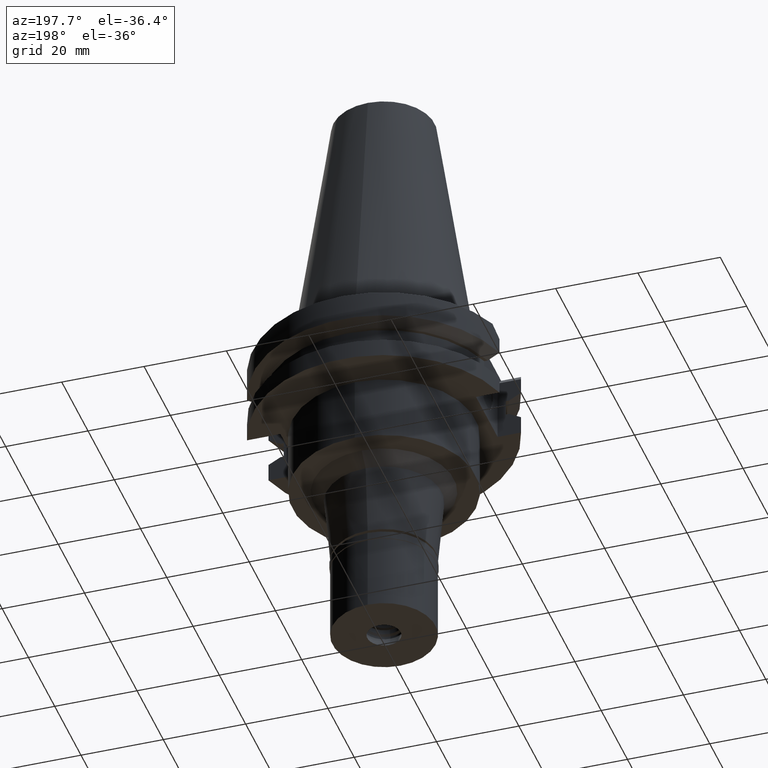
[diagram: clean part render]
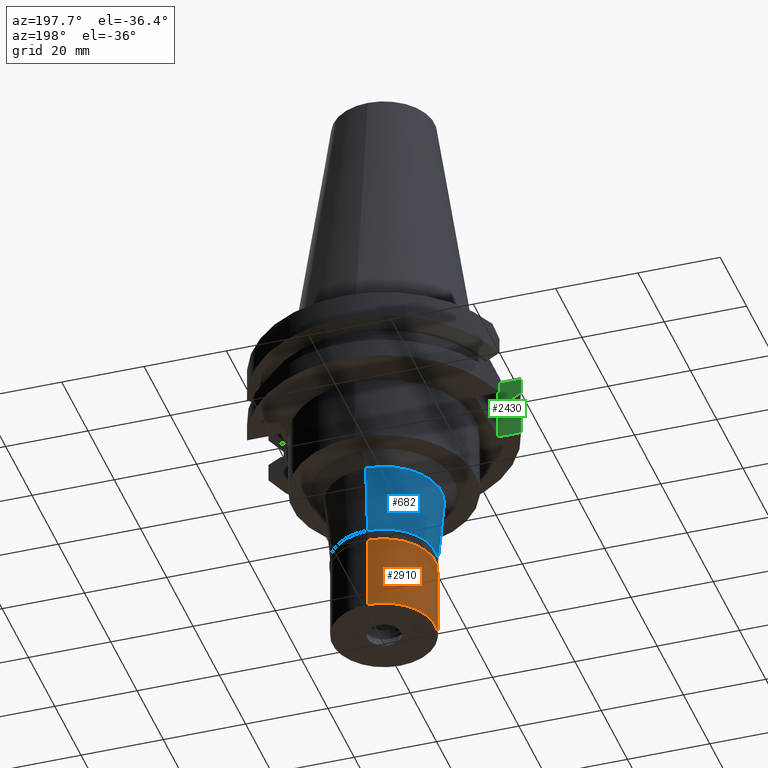
[diagram: same view with three faces highlighted in distinct colors, each labeled with its STEP entity id]
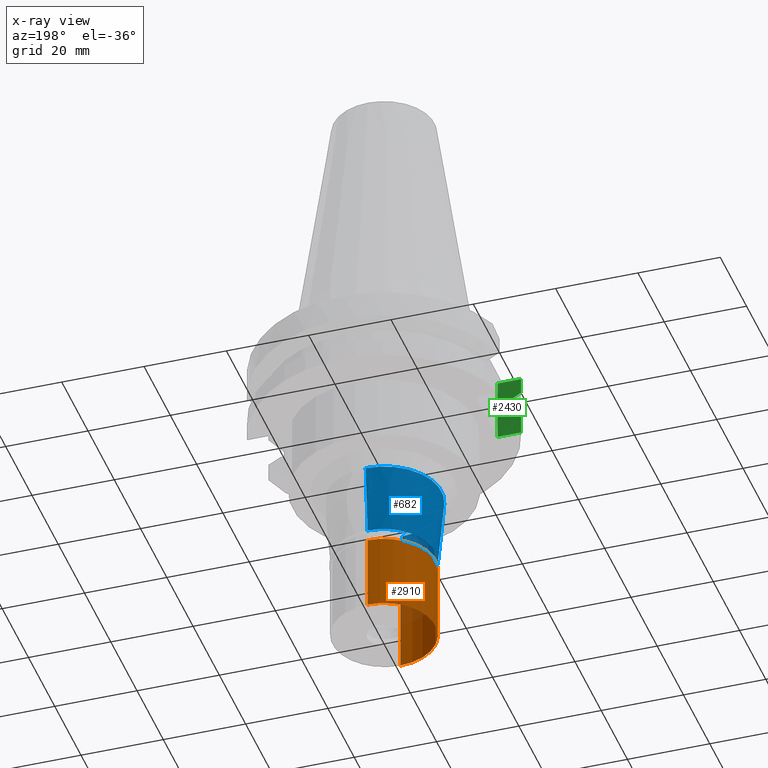
[diagram: x-ray of the same camera — body ghosted, the three highlighted faces saturated]
A machine part, auxiliary view with three faces highlighted in distinct colors.
The next image is the same camera in x-ray (body ghosted, the three faces saturated) — at least one of them is partly hidden behind the body in this view.
Their STEP definitions:

[orange] entity #2910 — the highlighted cylindrical surface (partial cylindrical patch) has radius 12.5 mm, axis along (0, 0, -1).
#43 = ORIENTED_EDGE ( 'NONE', *, *, #685, .T. ) ;
#105 = CIRCLE ( 'NONE', #2819, 12.50000000000000000 ) ;
#329 = AXIS2_PLACEMENT_3D ( 'NONE', #3093, #2898, #752 ) ;
#382 = EDGE_CURVE ( 'NONE', #1698, #1916, #1029, .T. ) ;
#422 = CARTESIAN_POINT ( 'NONE',  ( 0.0000000000000000000, 0.0000000000000000000, 0.0000000000000000000 ) ) ;
#464 = LINE ( 'NONE', #3036, #1900 ) ;
#622 = EDGE_CURVE ( 'NONE', #2555, #3150, #105, .T. ) ;
#685 = EDGE_CURVE ( 'NONE', #3150, #1698, #464, .T. ) ;
#752 = DIRECTION ( 'NONE',  ( 0.0000000000000000000, 1.000000000000000000, 0.0000000000000000000 ) ) ;
#1029 = CIRCLE ( 'NONE', #329, 12.50000000000000000 ) ;
#1129 = ORIENTED_EDGE ( 'NONE', *, *, #382, .T. ) ;
#1206 = CARTESIAN_POINT ( 'NONE',  ( 0.0000000000000000000, 12.50000000000000000, -20.50000000000000000 ) ) ;
#1215 = CARTESIAN_POINT ( 'NONE',  ( 0.0000000000000000000, -12.50000000000000000, -20.50000000000000000 ) ) ;
#1234 = LINE ( 'NONE', #1989, #1330 ) ;
#1330 = VECTOR ( 'NONE', #2476, 1000.000000000000000 ) ;
#1489 = ORIENTED_EDGE ( 'NONE', *, *, #622, .T. ) ;
#1698 = VERTEX_POINT ( 'NONE', #1206 ) ;
#1747 = DIRECTION ( 'NONE',  ( 0.0000000000000000000, -1.000000000000000000, 0.0000000000000000000 ) ) ;
#1900 = VECTOR ( 'NONE', #2532, 1000.000000000000000 ) ;
#1916 = VERTEX_POINT ( 'NONE', #1215 ) ;
#1925 = EDGE_CURVE ( 'NONE', #2555, #1916, #1234, .T. ) ;
#1989 = CARTESIAN_POINT ( 'NONE',  ( 0.0000000000000000000, -12.50000000000000000, -2.000000000000000000 ) ) ;
#2296 = CARTESIAN_POINT ( 'NONE',  ( 0.0000000000000000000, -12.50000000000000000, -2.000000000000000000 ) ) ;
#2327 = CARTESIAN_POINT ( 'NONE',  ( 0.0000000000000000000, 12.50000000000000000, -2.000000000000000000 ) ) ;
#2452 = DIRECTION ( 'NONE',  ( 0.0000000000000000000, 0.0000000000000000000, -1.000000000000000000 ) ) ;
#2476 = DIRECTION ( 'NONE',  ( 0.0000000000000000000, 0.0000000000000000000, -1.000000000000000000 ) ) ;
#2523 = AXIS2_PLACEMENT_3D ( 'NONE', #422, #2452, #2731 ) ;
#2532 = DIRECTION ( 'NONE',  ( 0.0000000000000000000, 0.0000000000000000000, -1.000000000000000000 ) ) ;
#2555 = VERTEX_POINT ( 'NONE', #2296 ) ;
#2678 = FACE_OUTER_BOUND ( 'NONE', #3258, .T. ) ;
#2731 = DIRECTION ( 'NONE',  ( 0.0000000000000000000, -1.000000000000000000, 0.0000000000000000000 ) ) ;
#2819 = AXIS2_PLACEMENT_3D ( 'NONE', #3288, #3305, #1747 ) ;
#2898 = DIRECTION ( 'NONE',  ( 0.0000000000000000000, 0.0000000000000000000, 1.000000000000000000 ) ) ;
#2910 = ADVANCED_FACE ( 'NONE', ( #2678 ), #2935, .T. ) ;
#2935 = CYLINDRICAL_SURFACE ( 'NONE', #2523, 12.50000000000000000 ) ;
#2987 = ORIENTED_EDGE ( 'NONE', *, *, #1925, .F. ) ;
#3036 = CARTESIAN_POINT ( 'NONE',  ( 0.0000000000000000000, 12.50000000000000000, -2.000000000000000000 ) ) ;
#3093 = CARTESIAN_POINT ( 'NONE',  ( 0.0000000000000000000, 0.0000000000000000000, -20.50000000000000000 ) ) ;
#3150 = VERTEX_POINT ( 'NONE', #2327 ) ;
#3258 = EDGE_LOOP ( 'NONE', ( #1129, #2987, #1489, #43 ) ) ;
#3288 = CARTESIAN_POINT ( 'NONE',  ( 0.0000000000000000000, 0.0000000000000000000, -2.000000000000000000 ) ) ;
#3305 = DIRECTION ( 'NONE',  ( 0.0000000000000000000, 0.0000000000000000000, -1.000000000000000000 ) ) ;

[blue] entity #682 — the highlighted conical surface has half-angle 5 deg.
#256 = ORIENTED_EDGE ( 'NONE', *, *, #2682, .F. ) ;
#349 = ORIENTED_EDGE ( 'NONE', *, *, #3182, .T. ) ;
#365 = CIRCLE ( 'NONE', #3243, 12.50000000000000000 ) ;
#521 = CIRCLE ( 'NONE', #964, 13.97855841358999918 ) ;
#595 = CARTESIAN_POINT ( 'NONE',  ( 0.0000000000000000000, -12.50000000000000000, -54.89999999999999858 ) ) ;
#639 = DIRECTION ( 'NONE',  ( 0.0000000000000000000, 0.0000000000000000000, 1.000000000000000000 ) ) ;
#672 = ORIENTED_EDGE ( 'NONE', *, *, #1819, .T. ) ;
#682 = ADVANCED_FACE ( 'NONE', ( #2811 ), #879, .T. ) ;
#714 = ORIENTED_EDGE ( 'NONE', *, *, #2823, .T. ) ;
#804 = DIRECTION ( 'NONE',  ( 0.0000000000000000000, 0.08715574274775331198, -0.9961946980917372185 ) ) ;
#866 = VERTEX_POINT ( 'NONE', #2185 ) ;
#879 = CONICAL_SURFACE ( 'NONE', #2942, 13.23927920679000181, 0.08726646259969973729 ) ;
#964 = AXIS2_PLACEMENT_3D ( 'NONE', #3133, #3115, #1833 ) ;
#1505 = DIRECTION ( 'NONE',  ( 0.0000000000000000000, 0.0000000000000000000, 1.000000000000000000 ) ) ;
#1819 = EDGE_CURVE ( 'NONE', #866, #2782, #2632, .T. ) ;
#1833 = DIRECTION ( 'NONE',  ( 0.0000000000000000000, -1.000000000000000000, 0.0000000000000000000 ) ) ;
#1911 = CARTESIAN_POINT ( 'NONE',  ( 0.0000000000000000000, 0.0000000000000000000, -54.89999999999999858 ) ) ;
#2022 = DIRECTION ( 'NONE',  ( 0.0000000000000000000, 1.000000000000000000, 0.0000000000000000000 ) ) ;
#2075 = VERTEX_POINT ( 'NONE', #595 ) ;
#2101 = LINE ( 'NONE', #3140, #2649 ) ;
#2157 = VECTOR ( 'NONE', #2589, 1000.000000000000000 ) ;
#2185 = CARTESIAN_POINT ( 'NONE',  ( 0.0000000000000000000, 13.97855841358999918, -38.00000000000000000 ) ) ;
#2589 = DIRECTION ( 'NONE',  ( 0.0000000000000000000, -0.08715574274775331198, -0.9961946980917372185 ) ) ;
#2632 = LINE ( 'NONE', #2842, #2157 ) ;
#2649 = VECTOR ( 'NONE', #804, 1000.000000000000000 ) ;
#2682 = EDGE_CURVE ( 'NONE', #2938, #2075, #2101, .T. ) ;
#2782 = VERTEX_POINT ( 'NONE', #3257 ) ;
#2792 = CARTESIAN_POINT ( 'NONE',  ( 0.0000000000000000000, 0.0000000000000000000, -46.44999999999999574 ) ) ;
#2811 = FACE_OUTER_BOUND ( 'NONE', #3120, .T. ) ;
#2823 = EDGE_CURVE ( 'NONE', #2782, #2075, #365, .T. ) ;
#2842 = CARTESIAN_POINT ( 'NONE',  ( 0.0000000000000000000, 13.97855841358999918, -38.00000000000000000 ) ) ;
#2938 = VERTEX_POINT ( 'NONE', #3053 ) ;
#2942 = AXIS2_PLACEMENT_3D ( 'NONE', #2792, #1505, #2022 ) ;
#3053 = CARTESIAN_POINT ( 'NONE',  ( 0.0000000000000000000, -13.97855841358999918, -38.00000000000000000 ) ) ;
#3115 = DIRECTION ( 'NONE',  ( 0.0000000000000000000, 0.0000000000000000000, -1.000000000000000000 ) ) ;
#3120 = EDGE_LOOP ( 'NONE', ( #714, #256, #349, #672 ) ) ;
#3133 = CARTESIAN_POINT ( 'NONE',  ( 0.0000000000000000000, 0.0000000000000000000, -38.00000000000000000 ) ) ;
#3140 = CARTESIAN_POINT ( 'NONE',  ( 0.0000000000000000000, -13.97855841358999918, -38.00000000000000000 ) ) ;
#3182 = EDGE_CURVE ( 'NONE', #2938, #866, #521, .T. ) ;
#3229 = DIRECTION ( 'NONE',  ( 0.0000000000000000000, 1.000000000000000000, 0.0000000000000000000 ) ) ;
#3243 = AXIS2_PLACEMENT_3D ( 'NONE', #1911, #639, #3229 ) ;
#3257 = CARTESIAN_POINT ( 'NONE',  ( 0.0000000000000000000, 12.50000000000000000, -54.89999999999999858 ) ) ;

[green] entity #2430 — the highlighted planar face has unit normal (0, -1, 0).
#13 = ORIENTED_EDGE ( 'NONE', *, *, #242, .T. ) ;
#31 = CARTESIAN_POINT ( 'NONE',  ( -24.98000000000000043, -8.189999999999999503, -19.05000000000000071 ) ) ;
#56 = CARTESIAN_POINT ( 'NONE',  ( -24.98000000000000043, -8.189999999999999503, -3.700000000000000178 ) ) ;
#67 = VERTEX_POINT ( 'NONE', #3268 ) ;
#71 = EDGE_LOOP ( 'NONE', ( #729, #417, #2762, #103, #1507, #1921, #13, #1487, #3241, #654 ) ) ;
#103 = ORIENTED_EDGE ( 'NONE', *, *, #2843, .T. ) ;
#110 = VERTEX_POINT ( 'NONE', #924 ) ;
#137 = LINE ( 'NONE', #928, #2039 ) ;
#168 = VERTEX_POINT ( 'NONE', #56 ) ;
#242 = EDGE_CURVE ( 'NONE', #911, #880, #356, .T. ) ;
#243 = VECTOR ( 'NONE', #1088, 1000.000000000000000 ) ;
#257 = CARTESIAN_POINT ( 'NONE',  ( -28.73639135944999978, -8.190000279736999289, -13.57237954717000150 ) ) ;
#356 = LINE ( 'NONE', #1265, #2040 ) ;
#377 = AXIS2_PLACEMENT_3D ( 'NONE', #3294, #1008, #1527 ) ;
#393 = CARTESIAN_POINT ( 'NONE',  ( -28.71170968623118824, -8.189998728260821537, -8.701758258264412405 ) ) ;
#417 = ORIENTED_EDGE ( 'NONE', *, *, #2595, .T. ) ;
#471 = VECTOR ( 'NONE', #2805, 999.9999999999998863 ) ;
#483 = VERTEX_POINT ( 'NONE', #2195 ) ;
#588 = VECTOR ( 'NONE', #1709, 1000.000000000000000 ) ;
#598 = DIRECTION ( 'NONE',  ( -0.9999999999997073452, 7.649102652500055266E-07, -1.176557840838009360E-12 ) ) ;
#644 = CARTESIAN_POINT ( 'NONE',  ( -29.67220410234038397, -8.189999749817552299, -8.167814102655917452 ) ) ;
#652 = CARTESIAN_POINT ( 'NONE',  ( -27.79399590090000061, -8.189999364809001037, -13.05000000000000071 ) ) ;
#654 = ORIENTED_EDGE ( 'NONE', *, *, #1635, .T. ) ;
#729 = ORIENTED_EDGE ( 'NONE', *, *, #1846, .T. ) ;
#808 = DIRECTION ( 'NONE',  ( 8.548999303088987641E-09, -3.201961304701998730E-08, 0.9999999999999994449 ) ) ;
#826 = CARTESIAN_POINT ( 'NONE',  ( -27.79399590090000061, -8.189999364809001037, -13.05000000000000071 ) ) ;
#880 = VERTEX_POINT ( 'NONE', #2394 ) ;
#884 = LINE ( 'NONE', #1724, #2807 ) ;
#911 = VERTEX_POINT ( 'NONE', #3262 ) ;
#924 = CARTESIAN_POINT ( 'NONE',  ( -26.96361066326000255, -8.189999999999999503, -13.05000000000000071 ) ) ;
#928 = CARTESIAN_POINT ( 'NONE',  ( -26.96361066326000255, -8.189999999999999503, -13.05000000000000071 ) ) ;
#939 = VERTEX_POINT ( 'NONE', #652 ) ;
#972 = EDGE_CURVE ( 'NONE', #880, #168, #2982, .T. ) ;
#1008 = DIRECTION ( 'NONE',  ( 0.0000000000000000000, -1.000000000000000000, 0.0000000000000000000 ) ) ;
#1071 = DIRECTION ( 'NONE',  ( -1.000000000000000000, 0.0000000000000000000, 0.0000000000000000000 ) ) ;
#1088 = DIRECTION ( 'NONE',  ( 1.000000000000000000, 0.0000000000000000000, 0.0000000000000000000 ) ) ;
#1115 = CARTESIAN_POINT ( 'NONE',  ( -30.34756847871999952, -8.189999874859001494, -14.46891068583000006 ) ) ;
#1237 = EDGE_CURVE ( 'NONE', #1291, #67, #1333, .T. ) ;
#1265 = CARTESIAN_POINT ( 'NONE',  ( -30.67550165929999650, -8.189999874861999984, -7.608164476231999984 ) ) ;
#1291 = VERTEX_POINT ( 'NONE', #1354 ) ;
#1309 = CARTESIAN_POINT ( 'NONE',  ( -30.67550165929999650, -8.189999874859001494, -14.65183552378000087 ) ) ;
#1333 = LINE ( 'NONE', #1885, #2808 ) ;
#1354 = CARTESIAN_POINT ( 'NONE',  ( -26.96361066326000255, -8.189999999999999503, -9.209999999999999076 ) ) ;
#1446 = EDGE_CURVE ( 'NONE', #1650, #168, #2188, .T. ) ;
#1487 = ORIENTED_EDGE ( 'NONE', *, *, #972, .T. ) ;
#1507 = ORIENTED_EDGE ( 'NONE', *, *, #1237, .T. ) ;
#1527 = DIRECTION ( 'NONE',  ( 0.0000000000000000000, 0.0000000000000000000, -1.000000000000000000 ) ) ;
#1635 = EDGE_CURVE ( 'NONE', #1650, #483, #2366, .T. ) ;
#1643 = CARTESIAN_POINT ( 'NONE',  ( -24.98000000000000043, -8.189999999999999503, -19.05000000000000071 ) ) ;
#1650 = VERTEX_POINT ( 'NONE', #2113 ) ;
#1687 = LINE ( 'NONE', #2229, #471 ) ;
#1709 = DIRECTION ( 'NONE',  ( 0.0000000000000000000, 0.0000000000000000000, 1.000000000000000000 ) ) ;
#1724 = CARTESIAN_POINT ( 'NONE',  ( -26.96361066326000255, -8.189999999999999503, -13.05000000000000071 ) ) ;
#1753 = FACE_OUTER_BOUND ( 'NONE', #71, .T. ) ;
#1822 = CARTESIAN_POINT ( 'NONE',  ( -28.10639959582000103, -8.189999364809001037, -13.22301146402999983 ) ) ;
#1846 = EDGE_CURVE ( 'NONE', #483, #3017, #1687, .T. ) ;
#1885 = CARTESIAN_POINT ( 'NONE',  ( -26.96361066326000255, -8.189999999999999503, -9.209999999999999076 ) ) ;
#1921 = ORIENTED_EDGE ( 'NONE', *, *, #2280, .F. ) ;
#1941 = DIRECTION ( 'NONE',  ( 0.0000000000000000000, 0.0000000000000000000, 1.000000000000000000 ) ) ;
#1974 = CARTESIAN_POINT ( 'NONE',  ( -30.67550165929999650, -8.189999874859001494, -14.65183552378000087 ) ) ;
#2032 = B_SPLINE_CURVE_WITH_KNOTS ( 'NONE', 3,
 ( #1309, #1115, #2347, #257, #1822, #826 ),
 .UNSPECIFIED., .F., .F.,
 ( 4, 1, 1, 4 ),
 ( 0.0000000000000000000, 0.3333333333333000081, 0.6666666666667000474, 1.000000000000000000 ),
 .UNSPECIFIED. ) ;
#2039 = VECTOR ( 'NONE', #1941, 1000.000000000000000 ) ;
#2040 = VECTOR ( 'NONE', #808, 1000.000000000000114 ) ;
#2113 = CARTESIAN_POINT ( 'NONE',  ( -24.98000000000000043, -8.189999999999999503, -19.05000000000000071 ) ) ;
#2183 = CARTESIAN_POINT ( 'NONE',  ( -30.67550165929999650, -8.189999874861999984, -7.608164476231999984 ) ) ;
#2188 = LINE ( 'NONE', #1643, #588 ) ;
#2195 = CARTESIAN_POINT ( 'NONE',  ( -30.67550162588999640, -8.189999999999999503, -19.05000000000000071 ) ) ;
#2229 = CARTESIAN_POINT ( 'NONE',  ( -30.67550162588999640, -8.189999999999999503, -19.05000000000000071 ) ) ;
#2254 = PLANE ( 'NONE',  #377 ) ;
#2280 = EDGE_CURVE ( 'NONE', #911, #67, #3007, .T. ) ;
#2299 = EDGE_CURVE ( 'NONE', #110, #939, #884, .T. ) ;
#2347 = CARTESIAN_POINT ( 'NONE',  ( -29.69688396597999613, -8.189999973706999725, -14.10634258970999966 ) ) ;
#2348 = VECTOR ( 'NONE', #1071, 1000.000000000000000 ) ;
#2366 = LINE ( 'NONE', #31, #2348 ) ;
#2380 = CARTESIAN_POINT ( 'NONE',  ( -30.67550162588999640, -8.189999999999999503, -3.700000000000000178 ) ) ;
#2394 = CARTESIAN_POINT ( 'NONE',  ( -30.67550162588999640, -8.189999999999999503, -3.700000000000000178 ) ) ;
#2430 = ADVANCED_FACE ( 'NONE', ( #1753 ), #2254, .F. ) ;
#2454 = DIRECTION ( 'NONE',  ( -0.9999999999997073452, 7.649350409578062482E-07, 5.818613318457042031E-13 ) ) ;
#2595 = EDGE_CURVE ( 'NONE', #3017, #939, #2032, .T. ) ;
#2718 = CARTESIAN_POINT ( 'NONE',  ( -27.79399590039999879, -8.189999364829999351, -9.210000000000999165 ) ) ;
#2762 = ORIENTED_EDGE ( 'NONE', *, *, #2299, .F. ) ;
#2805 = DIRECTION ( 'NONE',  ( -7.596765155690998193E-09, 2.845305638434998917E-08, 0.9999999999999996669 ) ) ;
#2807 = VECTOR ( 'NONE', #2454, 1000.000000000000114 ) ;
#2808 = VECTOR ( 'NONE', #598, 1000.000000000000227 ) ;
#2843 = EDGE_CURVE ( 'NONE', #110, #1291, #137, .T. ) ;
#2982 = LINE ( 'NONE', #2380, #243 ) ;
#3007 = B_SPLINE_CURVE_WITH_KNOTS ( 'NONE', 3,
 ( #2183, #644, #393, #2718 ),
 .UNSPECIFIED., .F., .F.,
 ( 4, 4 ),
 ( 0.0000000000000000000, 1.000000000000000000 ),
 .UNSPECIFIED. ) ;
#3017 = VERTEX_POINT ( 'NONE', #1974 ) ;
#3241 = ORIENTED_EDGE ( 'NONE', *, *, #1446, .F. ) ;
#3262 = CARTESIAN_POINT ( 'NONE',  ( -30.67550165929999650, -8.189999874861999984, -7.608164476231999984 ) ) ;
#3268 = CARTESIAN_POINT ( 'NONE',  ( -27.79399590039999879, -8.189999364829999351, -9.210000000000999165 ) ) ;
#3294 = CARTESIAN_POINT ( 'NONE',  ( -24.98000000000000043, -8.189999999999999503, -3.700000000000000178 ) ) ;